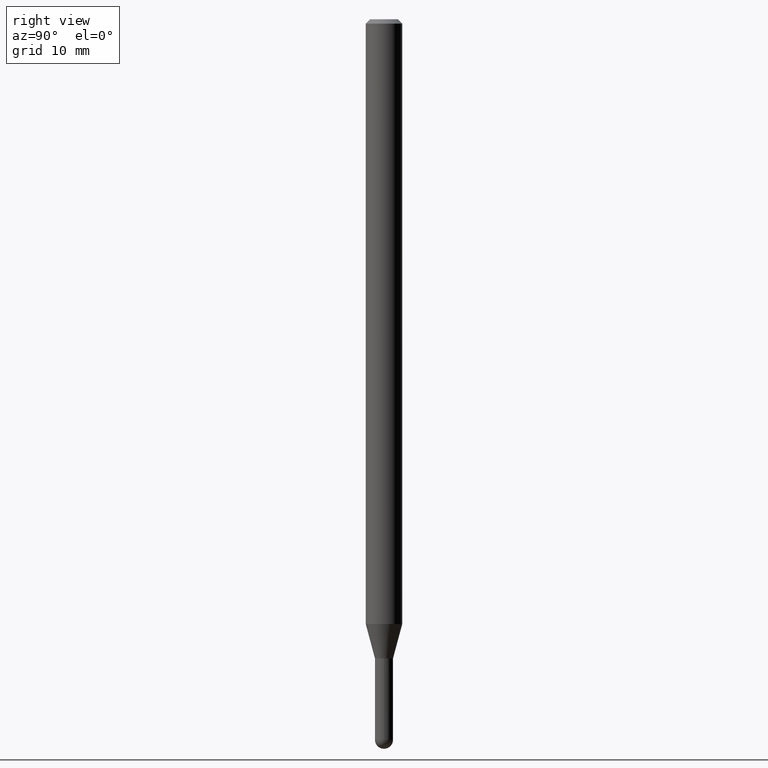
[diagram: clean part render]
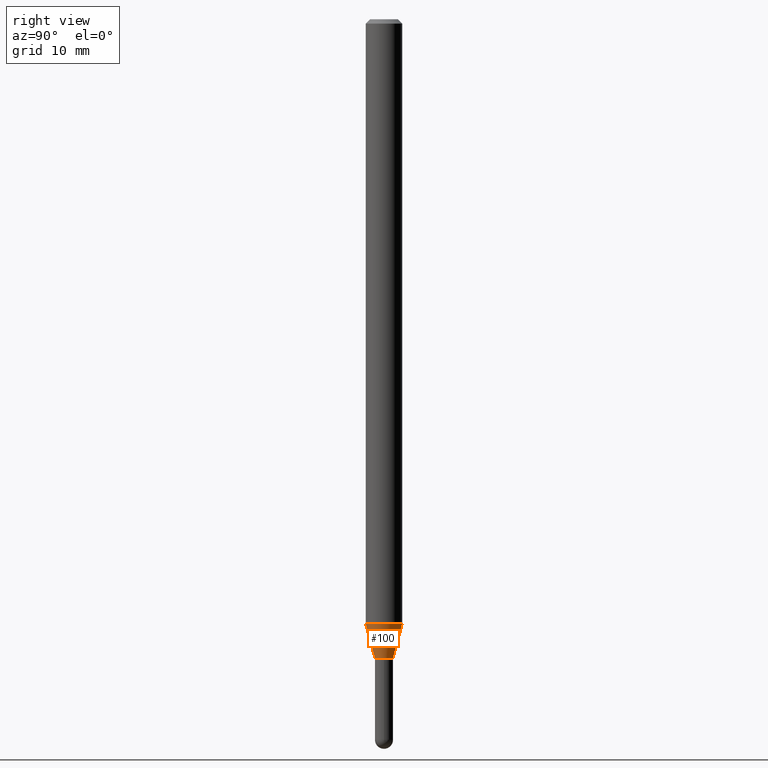
[diagram: same view with one face highlighted and labeled with its STEP entity id]
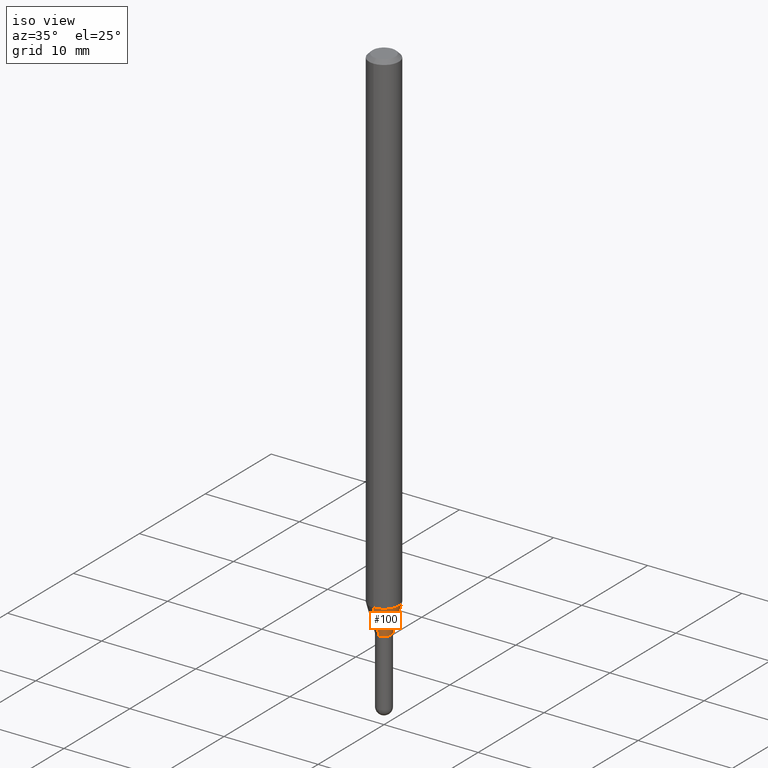
[diagram: same view with one face highlighted and labeled with its STEP entity id]
A machine part, right view. The second image highlights one B-rep face of the part: STEP entity #100.
A second angle (iso view) of the same face is appended — the face is thin or edge-on in the first view.
In plain terms, the highlighted conical surface has half-angle 15 deg.
Its self-contained STEP definition (entity closure, byte-faithful):
#12 = DIRECTION ( 'NONE',  ( -2.445487892702933065E-29, 3.491454005863323886E-15, 1.000000000000000000 ) ) ;
#22 = CARTESIAN_POINT ( 'NONE',  ( 2.202682480856840330E-16, 0.03099999999999227679, -2.189999999999999947 ) ) ;
#24 = DIRECTION ( 'NONE',  ( -1.807323732225379443E-15, -0.2588190451025252359, 0.9659258262890670910 ) ) ;
#28 = CARTESIAN_POINT ( 'NONE',  ( 5.355618485019424233E-29, -7.646284272840679535E-15, -2.189999999999999947 ) ) ;
#61 = CARTESIAN_POINT ( 'NONE',  ( -2.164718430082201463E-16, -0.03100000000000756664, -2.189999999999999947 ) ) ;
#65 = CARTESIAN_POINT ( 'NONE',  ( 4.440892098501130047E-16, 0.06249999999999273498, -2.072440399561584101 ) ) ;
#68 = CARTESIAN_POINT ( 'NONE',  ( -4.364351673553410837E-16, -0.06250000000000725808, -2.072440399561583657 ) ) ;
#75 = CARTESIAN_POINT ( 'NONE',  ( 3.321787289678987037E-16, 0.03099999999999227679, -2.189999999999999947 ) ) ;
#85 = VERTEX_POINT ( 'NONE', #68 ) ;
#100 = ADVANCED_FACE ( 'NONE', ( #155 ), #241, .T. ) ;
#105 = VECTOR ( 'NONE', #24, 39.37007874015748143 ) ;
#106 = LINE ( 'NONE', #22, #230 ) ;
#119 = VERTEX_POINT ( 'NONE', #75 ) ;
#124 = CIRCLE ( 'NONE', #458, 0.03099999999999992345 ) ;
#140 = AXIS2_PLACEMENT_3D ( 'NONE', #419, #12, #204 ) ;
#148 = ORIENTED_EDGE ( 'NONE', *, *, #391, .F. ) ;
#151 = LINE ( 'NONE', #61, #105 ) ;
#155 = FACE_OUTER_BOUND ( 'NONE', #205, .T. ) ;
#175 = EDGE_CURVE ( 'NONE', #85, #385, #250, .T. ) ;
#182 = DIRECTION ( 'NONE',  ( 1.839019923739650408E-15, 0.2588190451025319527, 0.9659258262890650926 ) ) ;
#188 = DIRECTION ( 'NONE',  ( -2.445487892702933065E-29, 3.491454005863323886E-15, 1.000000000000000000 ) ) ;
#204 = DIRECTION ( 'NONE',  ( -6.982962677686265922E-15, -1.000000000000000000, 4.370956789862821150E-15 ) ) ;
#205 = EDGE_LOOP ( 'NONE', ( #339, #467, #493, #148 ) ) ;
#225 = CARTESIAN_POINT ( 'NONE',  ( -2.164718430082201463E-16, -0.03100000000000756664, -2.189999999999999947 ) ) ;
#230 = VECTOR ( 'NONE', #182, 39.37007874015748854 ) ;
#239 = CARTESIAN_POINT ( 'NONE',  ( 5.355618485019424233E-29, -7.646284272840679535E-15, -2.189999999999999947 ) ) ;
#241 = CONICAL_SURFACE ( 'NONE', #485, 0.03099999999999992345, 0.2617993877991575680 ) ;
#250 = CIRCLE ( 'NONE', #140, 0.06250000000000000000 ) ;
#310 = DIRECTION ( 'NONE',  ( -6.982962677686265922E-15, -1.000000000000000000, 0.000000000000000000 ) ) ;
#319 = EDGE_CURVE ( 'NONE', #376, #119, #124, .T. ) ;
#337 = EDGE_CURVE ( 'NONE', #119, #385, #106, .T. ) ;
#339 = ORIENTED_EDGE ( 'NONE', *, *, #319, .T. ) ;
#376 = VERTEX_POINT ( 'NONE', #225 ) ;
#385 = VERTEX_POINT ( 'NONE', #65 ) ;
#391 = EDGE_CURVE ( 'NONE', #376, #85, #151, .T. ) ;
#406 = DIRECTION ( 'NONE',  ( -2.445487892702933065E-29, 3.491454005863323886E-15, 1.000000000000000000 ) ) ;
#419 = CARTESIAN_POINT ( 'NONE',  ( 5.068127905476282688E-29, -7.235830334962279648E-15, -2.072440399561584101 ) ) ;
#422 = DIRECTION ( 'NONE',  ( -6.982962677686265922E-15, -1.000000000000000000, 0.000000000000000000 ) ) ;
#458 = AXIS2_PLACEMENT_3D ( 'NONE', #28, #188, #422 ) ;
#467 = ORIENTED_EDGE ( 'NONE', *, *, #337, .T. ) ;
#485 = AXIS2_PLACEMENT_3D ( 'NONE', #239, #406, #310 ) ;
#493 = ORIENTED_EDGE ( 'NONE', *, *, #175, .F. ) ;